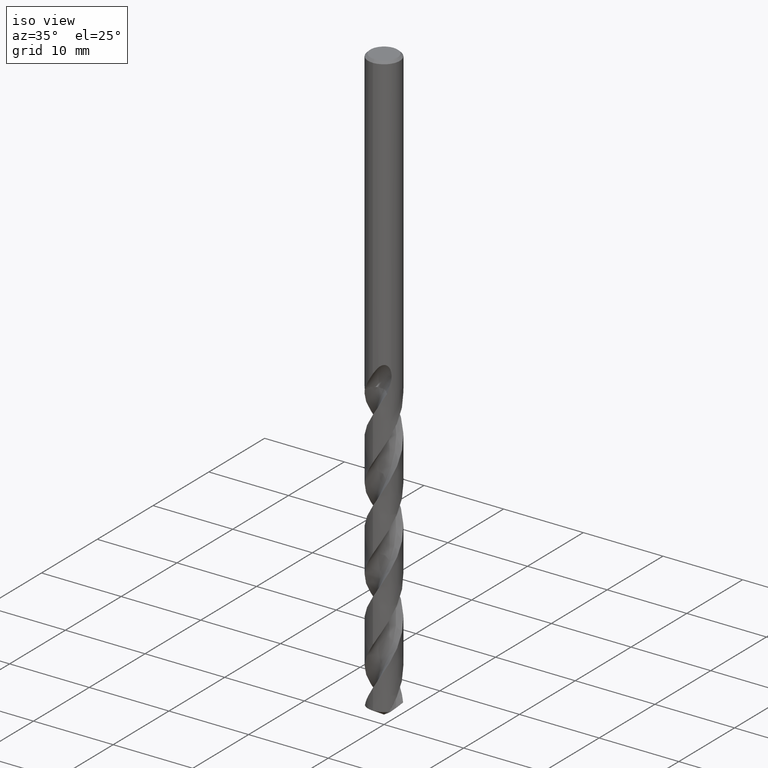
[diagram: clean part render]
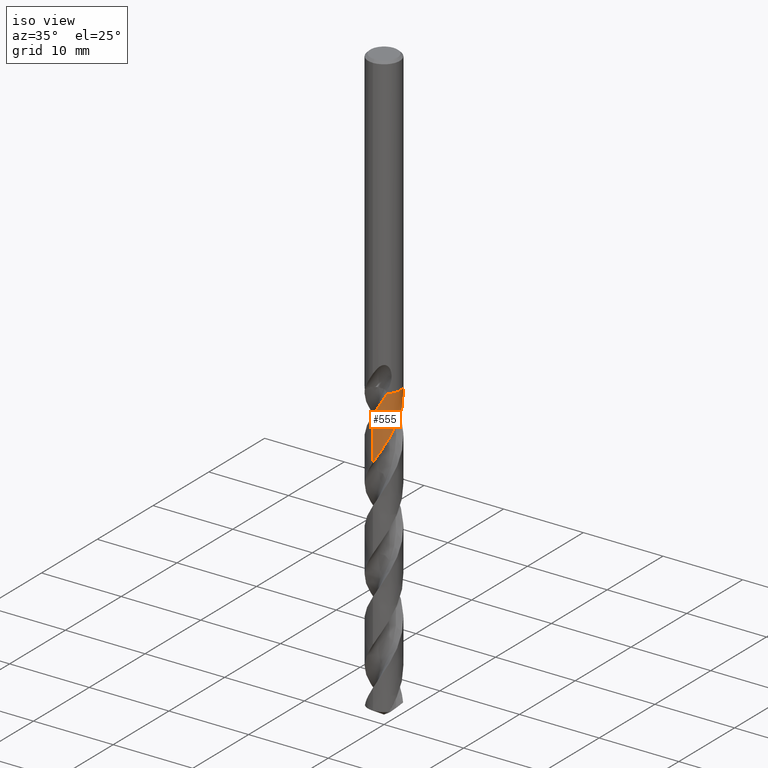
[diagram: same view with one face highlighted and labeled with its STEP entity id]
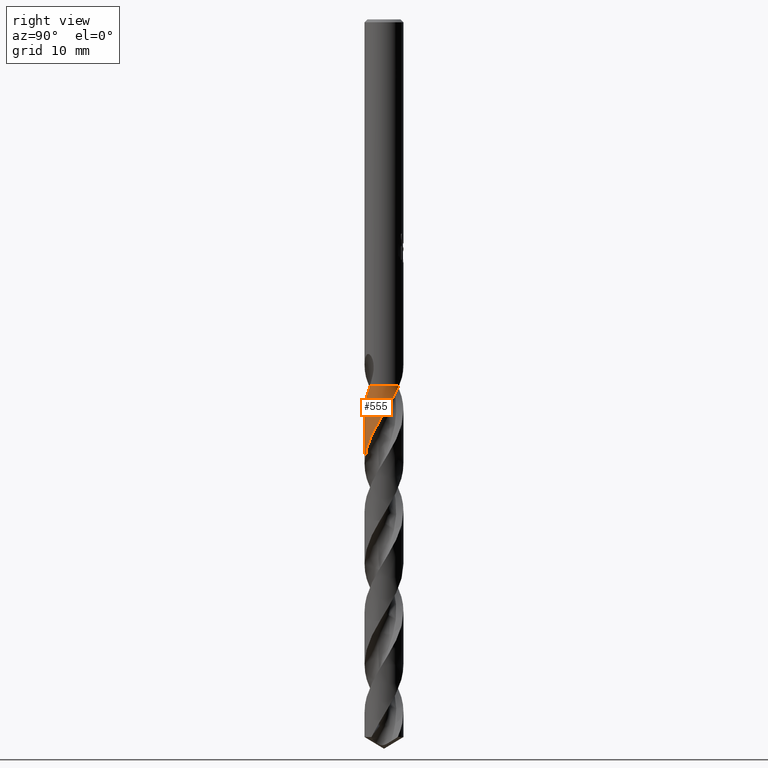
[diagram: same view with one face highlighted and labeled with its STEP entity id]
A machine part, iso view. The second image highlights one B-rep face of the part: STEP entity #555.
A second angle (right view) of the same face is appended — the face is thin or edge-on in the first view.
In plain terms, the highlighted conical surface has half-angle 0 deg.
Its self-contained STEP definition (entity closure, byte-faithful):
#303=EDGE_CURVE('',#523,#517,#803,.T.);
#363=VERTEX_POINT('',#871);
#411=EDGE_CURVE('',#523,#513,#926,.T.);
#429=EDGE_CURVE('',#363,#535,#946,.T.);
#513=VERTEX_POINT('',#1036);
#517=VERTEX_POINT('',#1040);
#523=VERTEX_POINT('',#1046);
#535=VERTEX_POINT('',#1061);
#549=EDGE_CURVE('',#661,#363,#1077,.T.);
#555=ADVANCED_FACE('',(#1084),#1085,.T.);
#609=EDGE_CURVE('',#535,#513,#1144,.T.);
#661=VERTEX_POINT('',#1200);
#679=EDGE_CURVE('',#517,#661,#1218,.T.);
#803=B_SPLINE_CURVE_WITH_KNOTS('',3,(#1654,#1655,#1656,#1657,#1658,#1659,#1660,#1661,#1662,#1663,#1664,#1665,#1666,#1667,#1668,#1669,#1670,#1671,#1672,#1673,#1674,#1675,#1676,#1677,#1678,#1679,#1680,#1681,#1682,#1683,#1684,#1685,#1686,#1687,#1688,#1689,#1690,#1691,#1692,#1693,#1694,#1695,#1696,#1697,#1698,#1699,#1700,#1701,#1702,#1703,#1704,#1705,#1706,#1707,#1708,#1709,#1710,#1711,#1712,#1713,#1714,#1715,#1716,#1717,#1718,#1719,#1720,#1721,#1722,#1723,#1724,#1725,#1726,#1727,#1728,#1729,#1730,#1731,#1732,#1733,#1734,#1735,#1736,#1737,#1738,#1739,#1740,#1741,#1742,#1743,#1744,#1745,#1746,#1747,#1748,#1749,#1750,#1751,#1752,#1753,#1754,#1755,#1756,#1757,#1758,#1759,#1760,#1761,#1762,#1763,#1764,#1765,#1766,#1767,#1768,#1769,#1770,#1771,#1772,#1773,#1774,#1775,#1776,#1777,#1778,#1779,#1780,#1781,#1782,#1783,#1784,#1785,#1786,#1787,#1788,#1789,#1790,#1791,#1792,#1793,#1794,#1795,#1796,#1797,#1798,#1799,#1800,#1801,#1802,#1803,#1804,#1805,#1806,#1807),.UNSPECIFIED.,.F.,.F.,(4,2,2,2,2,2,2,2,2,2,2,2,2,2,2,2,2,2,2,2,2,2,2,2,2,2,2,2,2,2,2,2,2,2,2,2,2,2,2,2,2,2,2,2,2,2,2,2,2,2,2,2,2,2,2,2,2,2,2,2,2,2,2,2,2,2,2,2,2,2,2,2,2,2,2,2,4),(0.0,1.24032553367658,1.48286990301691,2.52081264087684,3.03416551821197,3.70671508389971,4.37725410743775,5.04963320050356,5.72220383189465,6.4003737901738,7.10927777773157,7.8181323907391,8.52318346004922,9.23372237013536,9.86816172978323,10.5423467489422,10.8815407967902,10.9202487577009,11.6191148237687,11.9582378039923,12.5892865601359,13.2587080366521,13.5954922823803,13.6339757824647,14.3272693134265,14.6640012649049,15.2917140321308,15.956398699509,16.2907919260985,16.3741696488591,17.0057839634591,17.3403080393974,17.9800262047859,18.6405448371667,18.8057959462238,19.306067297673,19.965554956693,20.6227756760714,21.2818084755752,21.9409480895873,22.5996297300975,23.260602684544,23.8918656910809,24.5907816662158,25.2077878209879,25.9085561176649,26.6442976286168,27.3048885068284,27.9655777373696,28.6280008085611,29.2679378144779,29.9334140876591,30.514889471551,30.8504927100535,31.3663553845967,32.0286925286017,32.6890297992378,33.3509291716013,34.013185464377,34.674810658622,35.3388098755929,35.9656113593743,36.633379136894,37.7345972654092,37.7859749709192,38.4782272810486,40.0207165348157,40.6471288940166,40.9388104690562,41.1025023262755,41.195596909164,41.2333776767071,41.2695378062387,41.3189884562492,41.4343713854189,41.5982485505299,41.788288954141),.UNSPECIFIED.);
#871=CARTESIAN_POINT('',(1.3914031540101,-1.43652263226541,-37.7));
#926=LINE('',#3664,#3665);
#946=B_SPLINE_CURVE_WITH_KNOTS('',3,(#4639,#4640,#4641,#4642),.UNSPECIFIED.,.F.,.F.,(4,4),(0.0,0.00532634215155757),.UNSPECIFIED.);
#1036=CARTESIAN_POINT('',(-3.76272970418629E-015,-1.99990702961773,-40.2375710057314));
#1040=CARTESIAN_POINT('',(1.27440158741468,1.54126592754024,-37.705));
#1046=CARTESIAN_POINT('',(2.46037451759699E-013,-1.99992210752273,-45.6804351803826));
#1061=CARTESIAN_POINT('',(1.39008397358236,-1.43779922513228,-37.705));
#1077=CIRCLE('',#5975,1.9999);
#1084=FACE_OUTER_BOUND('',#6009,.T.);
#1085=CONICAL_SURFACE('',#6010,1.99995,2.77021518558259E-006);
#1144=B_SPLINE_CURVE_WITH_KNOTS('',3,(#6460,#6461,#6462,#6463,#6464,#6465,#6466,#6467,#6468,#6469,#6470,#6471,#6472,#6473,#6474,#6475,#6476,#6477,#6478,#6479,#6480,#6481,#6482,#6483,#6484,#6485,#6486,#6487,#6488,#6489,#6490,#6491,#6492,#6493,#6494,#6495,#6496,#6497,#6498,#6499,#6500,#6501,#6502,#6503,#6504,#6505,#6506,#6507,#6508,#6509,#6510,#6511,#6512,#6513,#6514,#6515,#6516,#6517,#6518,#6519,#6520,#6521,#6522,#6523,#6524,#6525,#6526,#6527,#6528,#6529,#6530,#6531,#6532,#6533,#6534,#6535,#6536,#6537,#6538,#6539,#6540,#6541,#6542,#6543,#6544,#6545,#6546,#6547,#6548,#6549,#6550,#6551,#6552,#6553,#6554,#6555,#6556,#6557,#6558,#6559,#6560,#6561,#6562,#6563,#6564,#6565,#6566,#6567,#6568,#6569,#6570,#6571,#6572,#6573,#6574,#6575,#6576,#6577,#6578,#6579,#6580,#6581,#6582,#6583,#6584,#6585,#6586,#6587,#6588,#6589,#6590,#6591,#6592,#6593,#6594,#6595,#6596,#6597,#6598,#6599,#6600,#6601,#6602,#6603,#6604,#6605,#6606,#6607,#6608,#6609,#6610,#6611,#6612,#6613,#6614,#6615,#6616,#6617,#6618,#6619,#6620,#6621,#6622,#6623,#6624,#6625,#6626,#6627,#6628,#6629,#6630,#6631,#6632,#6633,#6634,#6635,#6636,#6637,#6638,#6639,#6640,#6641),.UNSPECIFIED.,.F.,.F.,(4,2,2,2,2,2,2,2,2,2,2,2,2,2,2,2,2,2,2,2,2,2,2,2,2,2,2,2,2,2,2,2,2,2,2,2,2,2,2,2,2,2,2,2,2,2,2,2,2,2,2,2,2,2,2,2,2,2,2,2,2,2,2,2,2,2,2,2,2,2,2,2,2,2,2,2,2,2,2,2,2,2,2,2,2,2,2,2,2,2,4),(0.0,0.103242014952717,0.143162014123173,0.165246336569621,0.179587707751007,0.190170328115785,0.197981630062591,0.203754393433035,0.208026326100163,0.211176849575096,0.213497863286004,0.215211223497984,0.216477930308969,0.443871943252222,0.499196357866209,0.529789708739,0.555639728775984,0.586475384021084,0.64294904054601,0.716459816229802,1.01709561490843,1.18889624777996,1.33721914430403,1.48647925487588,2.17475794722885,2.50838508438569,2.97788342318188,3.69869431982922,4.15438525433489,4.78738339633805,5.13802788667931,5.47972340817034,6.07997742782962,6.43106360413721,6.79233197555612,7.94628727524654,8.08248365856264,9.16397508490607,9.48112720770868,10.103242533501,10.4343895620863,10.7854162159641,11.9554842663724,11.9886119956421,12.9498473469337,13.9068986778172,14.6031995455067,14.6699256937446,15.6665726820229,16.4850627584313,17.1757667926826,17.4705039393287,18.124078743558,18.4733057152474,18.7813091331889,19.4143265364156,19.7641888862437,20.0904935085466,20.7015453229712,21.0324695342341,21.3958003502327,22.5517948907513,22.6194212478342,23.601475810558,24.4670743800055,25.1215690732563,25.4212769544124,26.0656825745919,26.3958458071347,26.7212333550344,27.332742550354,27.6828289457632,28.0314073282876,29.1991322911171,29.2322034171917,30.191849307055,31.1472114073422,31.8423361268929,31.9088827792965,32.9054783203915,33.7170861157819,34.3693372364449,34.6825683904591,35.3050140239968,35.6352545509863,35.9824427866707,37.1558613127287,37.1886674167646,38.1513330405479,38.8764478364483,41.1040860441301),.UNSPECIFIED.);
#1200=CARTESIAN_POINT('',(1.2720272822931,1.54322603759204,-37.7));
#1218=B_SPLINE_CURVE_WITH_KNOTS('',3,(#7292,#7293,#7294,#7295),.UNSPECIFIED.,.F.,.F.,(4,4),(0.0,0.00587191555881923),.UNSPECIFIED.);
#1654=CARTESIAN_POINT('',(-1.53262371792478,1.28493756239532,-73.7982787619449));
#1655=CARTESIAN_POINT('',(-1.66988290302866,1.12121860058729,-73.4443152377205));
#1656=CARTESIAN_POINT('',(-1.78017755426643,0.93641936771401,-73.097612808172));
#1657=CARTESIAN_POINT('',(-1.87461281616959,0.698262375103469,-72.6755401035258));
#1658=CARTESIAN_POINT('',(-1.88882639474166,0.65885031969179,-72.6063935208323));
#1659=CARTESIAN_POINT('',(-1.95740806067853,0.448113983238073,-72.2415819853789));
#1660=CARTESIAN_POINT('',(-1.98971257301379,0.270662283067244,-71.9496929396074));
#1661=CARTESIAN_POINT('',(-2.00196227890094,0.00260361956815423,-71.5078805746169));
#1662=CARTESIAN_POINT('',(-2.00010904008816,-0.0863674349544658,-71.3610064273596));
#1663=CARTESIAN_POINT('',(-1.98211279688531,-0.291197956778016,-71.0230432618815));
#1664=CARTESIAN_POINT('',(-1.96176580929346,-0.406268890364327,-70.8324900580101));
#1665=CARTESIAN_POINT('',(-1.90130867156413,-0.631283876464247,-70.4498761632733));
#1666=CARTESIAN_POINT('',(-1.86143019532706,-0.740635693302151,-70.2580113307236));
#1667=CARTESIAN_POINT('',(-1.7629952437098,-0.951515288066501,-69.8754425077852));
#1668=CARTESIAN_POINT('',(-1.70456362423614,-1.05262268110823,-69.6849954016198));
#1669=CARTESIAN_POINT('',(-1.5706659038222,-1.24360917522762,-69.3020253800664));
#1670=CARTESIAN_POINT('',(-1.495577895581,-1.33295193219058,-69.1096743092869));
#1671=CARTESIAN_POINT('',(-1.33005093671287,-1.4982326792611,-68.7250520864913));
#1672=CARTESIAN_POINT('',(-1.23976210564702,-1.57377004067631,-68.5330770279535));
#1673=CARTESIAN_POINT('',(-1.04247427735746,-1.71122362109708,-68.1383350025074));
#1674=CARTESIAN_POINT('',(-0.935519627198441,-1.77194828469599,-67.9356965596016));
#1675=CARTESIAN_POINT('',(-0.71185041912336,-1.8730349991737,-67.532200545499));
#1676=CARTESIAN_POINT('',(-0.595588891374168,-1.91318488127829,-67.3317406914691));
#1677=CARTESIAN_POINT('',(-0.35774108972852,-1.97151161249924,-66.9294929341362));
#1678=CARTESIAN_POINT('',(-0.236843181585558,-1.98965606770417,-66.7280196875413));
#1679=CARTESIAN_POINT('',(0.00786822188284364,-2.00374462205703,-66.3252886702171));
#1680=CARTESIAN_POINT('',(0.131060641867172,-1.99946623553828,-66.1244186765992));
#1681=CARTESIAN_POINT('',(0.362001567646378,-1.97000659677621,-65.7417997353669));
#1682=CARTESIAN_POINT('',(0.469512641953792,-1.94718484423125,-65.5605355586954));
#1683=CARTESIAN_POINT('',(0.686494457352241,-1.8820868296905,-65.1882499614103));
#1684=CARTESIAN_POINT('',(0.795141264869552,-1.83882637421726,-64.9975542606636));
#1685=CARTESIAN_POINT('',(0.951877256578371,-1.75990880160137,-64.7093469690057));
#1686=CARTESIAN_POINT('',(1.00304114229599,-1.73125048289718,-64.6129552795981));
#1687=CARTESIAN_POINT('',(1.05845047599225,-1.69694554261188,-64.5053129438504));
#1688=CARTESIAN_POINT('',(1.06413033656497,-1.69338973608724,-64.4942479999532));
#1689=CARTESIAN_POINT('',(1.17244962393077,-1.62481156151548,-64.2826265525552));
#1690=CARTESIAN_POINT('',(1.26916965935683,-1.55048131867249,-64.0833760160938));
#1691=CARTESIAN_POINT('',(1.40216744952306,-1.42734787334935,-63.786156249145));
#1692=CARTESIAN_POINT('',(1.44377692091272,-1.38524058277191,-63.6891704622704));
#1693=CARTESIAN_POINT('',(1.55721567694982,-1.25978858150878,-63.4112074222793));
#1694=CARTESIAN_POINT('',(1.62408438506294,-1.17232125638436,-63.2296257509412));
#1695=CARTESIAN_POINT('',(1.7464865242893,-0.981470704049229,-62.857021079714));
#1696=CARTESIAN_POINT('',(1.80077973333512,-0.877894461545428,-62.6663223537711));
#1697=CARTESIAN_POINT('',(1.86835349781847,-0.715945830491936,-62.3781133208048));
#1698=CARTESIAN_POINT('',(1.8885250824403,-0.660883251029444,-62.2817234915331));
#1699=CARTESIAN_POINT('',(1.90824499270511,-0.598762819785289,-62.1740686099017));
#1700=CARTESIAN_POINT('',(1.91024307516528,-0.59235786993977,-62.162989667397));
#1701=CARTESIAN_POINT('',(1.94777011917785,-0.469881453690312,-61.9515387529477));
#1702=CARTESIAN_POINT('',(1.97276609700006,-0.350605290125268,-61.7524698993851));
#1703=CARTESIAN_POINT('',(1.99354989560672,-0.170670516689586,-61.4554339958378));
#1704=CARTESIAN_POINT('',(1.9977232763801,-0.111620473466883,-61.358447649903));
#1705=CARTESIAN_POINT('',(2.00216918789273,0.0576507512365968,-61.0801620512957));
#1706=CARTESIAN_POINT('',(1.99596019218351,0.167771404175438,-60.8982559807201));
#1707=CARTESIAN_POINT('',(1.96453863370029,0.392506346567296,-60.5253334291527));
#1708=CARTESIAN_POINT('',(1.93829175736386,0.506463128098232,-60.3346387536772));
#1709=CARTESIAN_POINT('',(1.8841117541943,0.67336465250481,-60.0464388242068));
#1710=CARTESIAN_POINT('',(1.86356817369174,0.728274550538368,-59.950072374824));
#1711=CARTESIAN_POINT('',(1.83498024645944,0.795553616264746,-59.8293268092294));
#1712=CARTESIAN_POINT('',(1.82910644742081,0.808968861376556,-59.8051560092734));
#1713=CARTESIAN_POINT('',(1.77727462886873,0.923870560796245,-59.5972427009877));
#1714=CARTESIAN_POINT('',(1.72300448044276,1.02156583827215,-59.4145626938415));
#1715=CARTESIAN_POINT('',(1.62770784002661,1.1635769232599,-59.1341079700727));
#1716=CARTESIAN_POINT('',(1.59256817713431,1.21122219268571,-59.0371218621479));
#1717=CARTESIAN_POINT('',(1.48431923733584,1.34514501172507,-58.754161390188));
#1718=CARTESIAN_POINT('',(1.4059876814206,1.42681954599787,-58.5675544239667));
#1719=CARTESIAN_POINT('',(1.23345235198588,1.57862324761034,-58.1899070021456));
#1720=CARTESIAN_POINT('',(1.13921636845709,1.64792187033076,-57.9991628217736));
#1721=CARTESIAN_POINT('',(1.01449710296805,1.72379563101954,-57.7593849746665));
#1722=CARTESIAN_POINT('',(0.989230053513144,1.73841773615108,-57.7114045067994));
#1723=CARTESIAN_POINT('',(0.88630832255769,1.79501324059676,-57.5180358516734));
#1724=CARTESIAN_POINT('',(0.806127497680109,1.83243227626335,-57.3720313022307));
#1725=CARTESIAN_POINT('',(0.614869591186591,1.90666186533303,-57.0348492732101));
#1726=CARTESIAN_POINT('',(0.502612112142768,1.9392819637579,-56.8442146983));
#1727=CARTESIAN_POINT('',(0.274022156347327,1.98450185285999,-56.4615307721579));
#1728=CARTESIAN_POINT('',(0.158318041513931,1.99705833170559,-56.2696712714644));
#1729=CARTESIAN_POINT('',(-0.0743366483283197,2.00196177721853,-55.8871171748329));
#1730=CARTESIAN_POINT('',(-0.190850947072009,1.99423442925676,-55.6966794559267));
#1731=CARTESIAN_POINT('',(-0.421322789987743,1.95854086344719,-55.3137458350253));
#1732=CARTESIAN_POINT('',(-0.534631740415872,1.93067938963049,-55.1214227075347));
#1733=CARTESIAN_POINT('',(-0.755018464011864,1.85560718970463,-54.7385879621882));
#1734=CARTESIAN_POINT('',(-0.861738141156644,1.80852556344546,-54.5483401426844));
#1735=CARTESIAN_POINT('',(-1.0662389414274,1.69604899421464,-54.1651977432134));
#1736=CARTESIAN_POINT('',(-1.16338955698532,1.63092602337572,-53.9724690426943));
#1737=CARTESIAN_POINT('',(-1.34106970864471,1.48785967673115,-53.5972854908633));
#1738=CARTESIAN_POINT('',(-1.42193288375152,1.41079282422494,-53.414983140333));
#1739=CARTESIAN_POINT('',(-1.5780070115914,1.23488132129178,-53.0290686932739));
#1740=CARTESIAN_POINT('',(-1.65116003264857,1.13518135682253,-52.825464120983));
#1741=CARTESIAN_POINT('',(-1.77064317117963,0.936178956669493,-52.4436626505247));
#1742=CARTESIAN_POINT('',(-1.81900010199805,0.838382457932723,-52.265558219128));
#1743=CARTESIAN_POINT('',(-1.90480664316705,0.621932407639089,-51.8835275227407));
#1744=CARTESIAN_POINT('',(-1.93958611023215,0.50299813893994,-51.6795842008056));
#1745=CARTESIAN_POINT('',(-1.98790527980888,0.254537183472631,-51.2631194883426));
#1746=CARTESIAN_POINT('',(-2.00023614044885,0.125110120125665,-51.0513377655327));
#1747=CARTESIAN_POINT('',(-1.99965681288727,-0.121239638589642,-50.6468240063958));
#1748=CARTESIAN_POINT('',(-1.98920521820812,-0.237382966937104,-50.4546095261018));
#1749=CARTESIAN_POINT('',(-1.94823537682987,-0.466547727887327,-50.0718350250351));
#1750=CARTESIAN_POINT('',(-1.91777593191076,-0.579178353501137,-49.8815366509014));
#1751=CARTESIAN_POINT('',(-1.83743365297725,-0.798258586093952,-49.4984439211633));
#1752=CARTESIAN_POINT('',(-1.78773942221572,-0.904055792872252,-49.3058158007163));
#1753=CARTESIAN_POINT('',(-1.67253254227673,-1.10229404571645,-48.9287295018681));
#1754=CARTESIAN_POINT('',(-1.60775976041749,-1.19480510036355,-48.7444489625398));
#1755=CARTESIAN_POINT('',(-1.46029913988396,-1.37149886332,-48.366745234998));
#1756=CARTESIAN_POINT('',(-1.37745581153361,-1.45465615726233,-48.1734207001611));
#1757=CARTESIAN_POINT('',(-1.20971117504869,-1.59585878280226,-47.8126444089888));
#1758=CARTESIAN_POINT('',(-1.12647630649067,-1.65567539813227,-47.6451748254322));
#1759=CARTESIAN_POINT('',(-0.988384363968059,-1.73962673712692,-47.3800946684194));
#1760=CARTESIAN_POINT('',(-0.936574960731401,-1.76805363786914,-47.2831942359247));
#1761=CARTESIAN_POINT('',(-0.802305596613202,-1.83418424183212,-47.036851193348));
#1762=CARTESIAN_POINT('',(-0.718279184548838,-1.86869746755517,-46.8869491200006));
#1763=CARTESIAN_POINT('',(-0.52142273202017,-1.9342756100976,-46.5459178778786));
#1764=CARTESIAN_POINT('',(-0.407726963275053,-1.96139566407105,-46.355304920412));
#1765=CARTESIAN_POINT('',(-0.177186304618905,-1.99545305276533,-45.9725898816065));
#1766=CARTESIAN_POINT('',(-0.0609733414137376,-2.0023685596074,-45.7806753950565));
#1767=CARTESIAN_POINT('',(0.171661160097134,-1.99594333309148,-45.3980845353686));
#1768=CARTESIAN_POINT('',(0.287649117635595,-1.98255753983809,-45.2076659502053));
#1769=CARTESIAN_POINT('',(0.516134417628137,-1.93568904968514,-44.8247032028507));
#1770=CARTESIAN_POINT('',(0.627983982716596,-1.90233543953389,-44.6323326758171));
#1771=CARTESIAN_POINT('',(0.844475022128079,-1.81661109103565,-44.2494452229939));
#1772=CARTESIAN_POINT('',(0.948772522238124,-1.76438973439971,-44.0591942825847));
#1773=CARTESIAN_POINT('',(1.14755934457002,-1.64208443637845,-43.6760280705636));
#1774=CARTESIAN_POINT('',(1.24143080721525,-1.57230097466319,-43.4832720041797));
#1775=CARTESIAN_POINT('',(1.41097805867138,-1.42159582322371,-43.1101730273673));
#1776=CARTESIAN_POINT('',(1.48718168540786,-1.34168592350624,-42.9299507471879));
#1777=CARTESIAN_POINT('',(1.63026841121357,-1.16434289602977,-42.5560521849537));
#1778=CARTESIAN_POINT('',(1.69575743043484,-1.06667060780719,-42.362462441773));
#1779=CARTESIAN_POINT('',(1.8453700664036,-0.794725484491324,-41.8515701531617));
#1780=CARTESIAN_POINT('',(1.91337952920689,-0.613003185064811,-41.5381764187789));
#1781=CARTESIAN_POINT('',(1.95621511932899,-0.41586310725348,-41.2051681533261));
#1782=CARTESIAN_POINT('',(1.9580629959505,-0.407073801080759,-41.1903331936901));
#1783=CARTESIAN_POINT('',(1.98401701981457,-0.279346328385922,-40.9752211276293));
#1784=CARTESIAN_POINT('',(1.99736138168565,-0.158239261368164,-40.7763300693778));
#1785=CARTESIAN_POINT('',(2.00451487709897,0.235194943909462,-40.1312067315355));
#1786=CARTESIAN_POINT('',(1.95410061767399,0.50540297378357,-39.6848285766994));
#1787=CARTESIAN_POINT('',(1.8088697509928,0.860152389223623,-39.0591920328594));
#1788=CARTESIAN_POINT('',(1.75946381310348,0.956638556166705,-38.8853843587732));
#1789=CARTESIAN_POINT('',(1.67805049006828,1.08912697475643,-38.6253118050715));
#1790=CARTESIAN_POINT('',(1.65112221139424,1.12945484109858,-38.5425157905671));
#1791=CARTESIAN_POINT('',(1.60774036509074,1.18974437591616,-38.4118055225168));
#1792=CARTESIAN_POINT('',(1.59192903081597,1.2108033204371,-38.3646894112861));
#1793=CARTESIAN_POINT('',(1.56682986314169,1.24292765889574,-38.2903471927372));
#1794=CARTESIAN_POINT('',(1.55962632914924,1.25198562289494,-38.2687816208233));
#1795=CARTESIAN_POINT('',(1.54432423834948,1.27071524606637,-38.2264184795733));
#1796=CARTESIAN_POINT('',(1.53982358369299,1.27616624375821,-38.2142421541025));
#1797=CARTESIAN_POINT('',(1.53084522684893,1.28692085116517,-38.190508945088));
#1798=CARTESIAN_POINT('',(1.52637641357318,1.29221884206538,-38.1789521088422));
#1799=CARTESIAN_POINT('',(1.51560459246632,1.30485236716283,-38.1517021446857));
#1800=CARTESIAN_POINT('',(1.50923441842683,1.31221724621614,-38.1360582684901));
#1801=CARTESIAN_POINT('',(1.48748382478172,1.33698486501797,-38.0842126297658));
#1802=CARTESIAN_POINT('',(1.47144810602311,1.35464104761593,-38.0484910725662));
#1803=CARTESIAN_POINT('',(1.43048833704534,1.39804598143647,-37.9632230702732));
#1804=CARTESIAN_POINT('',(1.40477950862335,1.42395258190716,-37.9144229715555));
#1805=CARTESIAN_POINT('',(1.34527219624892,1.48046813185615,-37.8111773236327));
#1806=CARTESIAN_POINT('',(1.31105923424166,1.51095560156955,-37.7574599059652));
#1807=CARTESIAN_POINT('',(1.27440158741468,1.54126592754024,-37.705));
#3664=CARTESIAN_POINT('',(2.46107026183834E-016,-1.99995,-55.7491393809724));
#3665=VECTOR('',#8141,1.0);
#4639=CARTESIAN_POINT('',(1.3914031540101,-1.43652263226541,-37.7));
#4640=CARTESIAN_POINT('',(1.39096382345312,-1.43694817039691,-37.7016667691421));
#4641=CARTESIAN_POINT('',(1.3905240968048,-1.43737370155414,-37.7033334362763));
#4642=CARTESIAN_POINT('',(1.39008397358236,-1.43779922513228,-37.705));
#5975=AXIS2_PLACEMENT_3D('',#8296,#8297,#8298);
#6009=EDGE_LOOP('',(#8308,#8309,#8310,#8311,#8312,#8313));
#6010=AXIS2_PLACEMENT_3D('',#8314,#8315,#8316);
#6460=CARTESIAN_POINT('',(1.39008397358236,-1.43779922513228,-37.705));
#6461=CARTESIAN_POINT('',(1.37786387304143,-1.44961390092323,-37.7349233406855));
#6462=CARTESIAN_POINT('',(1.36544726101343,-1.46131775670189,-37.7648875674558));
#6463=CARTESIAN_POINT('',(1.34790380970774,-1.47743041319746,-37.8063976775579));
#6464=CARTESIAN_POINT('',(1.34298074550868,-1.48190707638936,-37.8179595512112));
#6465=CARTESIAN_POINT('',(1.33527584453718,-1.48884303031934,-37.835910530226));
#6466=CARTESIAN_POINT('',(1.33252121537796,-1.49130899298506,-37.8423001431057));
#6467=CARTESIAN_POINT('',(1.3279587484769,-1.49537053925125,-37.8528354264572));
#6468=CARTESIAN_POINT('',(1.32615789314022,-1.49696786844326,-37.8569816550718));
#6469=CARTESIAN_POINT('',(1.32301970865334,-1.4997412583039,-37.8641854426557));
#6470=CARTESIAN_POINT('',(1.32168472205139,-1.50091789596464,-37.8672432344455));
#6471=CARTESIAN_POINT('',(1.31935972432941,-1.50296159894508,-37.872556879257));
#6472=CARTESIAN_POINT('',(1.31837097537306,-1.5038289963821,-37.874812924169));
#6473=CARTESIAN_POINT('',(1.31664899002395,-1.50533663129249,-37.8787355613984));
#6474=CARTESIAN_POINT('',(1.31591643344166,-1.50597705717489,-37.8804022847349));
#6475=CARTESIAN_POINT('',(1.31464039347926,-1.50709097131424,-37.8833020169032));
#6476=CARTESIAN_POINT('',(1.31409727761907,-1.5075645655386,-37.8845351079524));
#6477=CARTESIAN_POINT('',(1.31315286216759,-1.50838719221455,-37.8866773748265));
#6478=CARTESIAN_POINT('',(1.31275176425542,-1.50873628472428,-37.8875866008112));
#6479=CARTESIAN_POINT('',(1.3120547640544,-1.50934242492065,-37.8891655372906));
#6480=CARTESIAN_POINT('',(1.3117589713566,-1.50959950587481,-37.889835276749));
#6481=CARTESIAN_POINT('',(1.31124460304084,-1.51004629102899,-37.8909993464913));
#6482=CARTESIAN_POINT('',(1.31102608631687,-1.51023601353297,-37.8914936933869));
#6483=CARTESIAN_POINT('',(1.31064589608968,-1.5105659608849,-37.8923534791378));
#6484=CARTESIAN_POINT('',(1.31048425444945,-1.51070619579981,-37.8927189273831));
#6485=CARTESIAN_POINT('',(1.28129847119991,-1.53601860058955,-37.9586860026859));
#6486=CARTESIAN_POINT('',(1.25167303414436,-1.56028381319221,-38.0224431825554));
#6487=CARTESIAN_POINT('',(1.21267629813578,-1.59031866221227,-38.1027354495152));
#6488=CARTESIAN_POINT('',(1.20498416928656,-1.59615528856036,-38.1184117578468));
#6489=CARTESIAN_POINT('',(1.19292946554293,-1.60516445319522,-38.142752674755));
#6490=CARTESIAN_POINT('',(1.1886188990613,-1.60835910120316,-38.151412495637));
#6491=CARTESIAN_POINT('',(1.1806303194515,-1.61422980149747,-38.1673858125768));
#6492=CARTESIAN_POINT('',(1.17695932650249,-1.61690837942242,-38.1746969346226));
#6493=CARTESIAN_POINT('',(1.16888092800683,-1.62276069387482,-38.1907265650866));
#6494=CARTESIAN_POINT('',(1.16447000259866,-1.62592887515482,-38.1994406655654));
#6495=CARTESIAN_POINT('',(1.15193225465519,-1.63485687875439,-38.2241122048803));
#6496=CARTESIAN_POINT('',(1.14377388160877,-1.64057511716888,-38.240050680143));
#6497=CARTESIAN_POINT('',(1.124883089014,-1.65360602334604,-38.2767503741521));
#6498=CARTESIAN_POINT('',(1.1140101645739,-1.66095291816124,-38.2977162292994));
#6499=CARTESIAN_POINT('',(1.05758689680201,-1.69825548402141,-38.4063795585645));
#6500=CARTESIAN_POINT('',(1.01135940529068,-1.72615981094616,-38.494461257439));
#6501=CARTESIAN_POINT('',(0.937651301953933,-1.76673612874487,-38.6325833052391));
#6502=CARTESIAN_POINT('',(0.910548755889102,-1.78085451334152,-38.6829007721702));
#6503=CARTESIAN_POINT('',(0.859540047941869,-1.80596144120811,-38.7766066497506));
#6504=CARTESIAN_POINT('',(0.835676122450983,-1.81712738461465,-38.8200526400443));
#6505=CARTESIAN_POINT('',(0.787366671292288,-1.83857825588234,-38.9071631414763));
#6506=CARTESIAN_POINT('',(0.762913051352005,-1.84885956150845,-38.9508576801187));
#6507=CARTESIAN_POINT('',(0.624531804478263,-1.90382487312776,-39.1960965378374));
#6508=CARTESIAN_POINT('',(0.506800011457292,-1.93850608101639,-39.3969235943402));
#6509=CARTESIAN_POINT('',(0.328189434750769,-1.97368843468534,-39.6958828205283));
#6510=CARTESIAN_POINT('',(0.269404760654191,-1.98256751545482,-39.7934153264086));
#6511=CARTESIAN_POINT('',(0.127180392545985,-1.99760882048565,-40.0284005937068));
#6512=CARTESIAN_POINT('',(0.0436280534757016,-2.00117317540215,-40.1657284148118));
#6513=CARTESIAN_POINT('',(-0.167993922131697,-1.99695729887707,-40.5141558167758));
#6514=CARTESIAN_POINT('',(-0.295696276776411,-1.98208824320795,-40.7247245150474));
#6515=CARTESIAN_POINT('',(-0.500507642548412,-1.93796660852985,-41.0689370294438));
#6516=CARTESIAN_POINT('',(-0.578701569921236,-1.91606979464316,-41.2019739583632));
#6517=CARTESIAN_POINT('',(-0.761800585155813,-1.85256556680259,-41.5205624544108));
#6518=CARTESIAN_POINT('',(-0.864958763858327,-1.80670701581165,-41.7056687792942));
#6519=CARTESIAN_POINT('',(-1.01840383518741,-1.72232345515074,-41.9935293823529));
#6520=CARTESIAN_POINT('',(-1.07167504306704,-1.68969262448148,-42.0960636422373));
#6521=CARTESIAN_POINT('',(-1.17368991387904,-1.62043397719474,-42.2986452830333));
#6522=CARTESIAN_POINT('',(-1.22243134882225,-1.5839861674161,-42.3985223682522));
#6523=CARTESIAN_POINT('',(-1.35197875803215,-1.47757302746799,-42.6742377520251));
#6524=CARTESIAN_POINT('',(-1.42898026494289,-1.40324352193779,-42.8498288182095));
#6525=CARTESIAN_POINT('',(-1.54103201048698,-1.27623951058631,-43.1282844291864));
#6526=CARTESIAN_POINT('',(-1.58017518124301,-1.22744400754446,-43.2309638840003));
#6527=CARTESIAN_POINT('',(-1.65484673976761,-1.12484982187756,-43.4394247630929));
#6528=CARTESIAN_POINT('',(-1.69016926839794,-1.07104118368905,-43.5450063516116));
#6529=CARTESIAN_POINT('',(-1.82716214871244,-0.838661392802355,-43.988554792302));
#6530=CARTESIAN_POINT('',(-1.90364728869491,-0.646577920719705,-44.3246496815499));
#6531=CARTESIAN_POINT('',(-1.95492599050632,-0.422528921981249,-44.7022578638532));
#6532=CARTESIAN_POINT('',(-1.95990682346583,-0.398787551681917,-44.7421118137018));
#6533=CARTESIAN_POINT('',(-2.00056344009476,-0.18579100925809,-45.0986064558074));
#6534=CARTESIAN_POINT('',(-2.00917060093627,0.00770024177994527,-45.414056747109));
#6535=CARTESIAN_POINT('',(-1.98431497305919,0.25569142938738,-45.823498563394));
#6536=CARTESIAN_POINT('',(-1.97630034000346,0.311637097627918,-45.9162602566387));
#6537=CARTESIAN_POINT('',(-1.94559463670072,0.476055283765676,-46.1913250434059));
#6538=CARTESIAN_POINT('',(-1.91623901174088,0.583099679330402,-46.3733747087533));
#6539=CARTESIAN_POINT('',(-1.85789361749266,0.742569975498839,-46.6525246326869));
#6540=CARTESIAN_POINT('',(-1.83517978593947,0.797056045261772,-46.7494256940456));
#6541=CARTESIAN_POINT('',(-1.78348032272468,0.907090990754286,-46.9491552098852));
#6542=CARTESIAN_POINT('',(-1.75424573013992,0.962410791715765,-47.0518064894414));
#6543=CARTESIAN_POINT('',(-1.6165770545773,1.19575030248112,-47.4973066277941));
#6544=CARTESIAN_POINT('',(-1.48321586502623,1.35767303787772,-47.8381517440104));
#6545=CARTESIAN_POINT('',(-1.32279105466159,1.49999164618099,-48.1904832533959));
#6546=CARTESIAN_POINT('',(-1.31835666138672,1.50389059906422,-48.2001841812809));
#6547=CARTESIAN_POINT('',(-1.18473909807011,1.62032907219414,-48.4914097837295));
#6548=CARTESIAN_POINT('',(-1.04160608451341,1.71585111603375,-48.7724598708261));
#6549=CARTESIAN_POINT('',(-0.735189798456847,1.86770859301357,-49.3343897830595));
#6550=CARTESIAN_POINT('',(-0.573290298276154,1.92357578645447,-49.6136975969326));
#6551=CARTESIAN_POINT('',(-0.284870783913293,1.98342517310971,-50.0981440698975));
#6552=CARTESIAN_POINT('',(-0.161280484948193,1.99728314695719,-50.3015591576284));
#6553=CARTESIAN_POINT('',(-0.0252633648918547,1.99981134349552,-50.5250609896347));
#6554=CARTESIAN_POINT('',(-0.0133692633380906,1.99992627011224,-50.5446030573995));
#6555=CARTESIAN_POINT('',(0.176192989974687,2.00006687577187,-50.8561456557864));
#6556=CARTESIAN_POINT('',(0.353150303939391,1.97651829778656,-51.1474818604949));
#6557=CARTESIAN_POINT('',(0.665516905074134,1.89159938414709,-51.6793257220622));
#6558=CARTESIAN_POINT('',(0.801701845443321,1.83801603994168,-51.918504611597));
#6559=CARTESIAN_POINT('',(1.03972515516455,1.71285781212852,-52.3608475389737));
#6560=CARTESIAN_POINT('',(1.14318749386553,1.64561904780784,-52.5627481864189));
#6561=CARTESIAN_POINT('',(1.28109238878819,1.53666307301564,-52.8514734035916));
#6562=CARTESIAN_POINT('',(1.32101940761068,1.50247649192005,-52.9377780524801));
#6563=CARTESIAN_POINT('',(1.44496784091985,1.38759024205621,-53.2157277616039));
#6564=CARTESIAN_POINT('',(1.52333605954696,1.30107702990046,-53.407095139131));
#6565=CARTESIAN_POINT('',(1.63135501760469,1.15859199528363,-53.7009829969624));
#6566=CARTESIAN_POINT('',(1.66664190360085,1.10723235499331,-53.8032435116127));
#6567=CARTESIAN_POINT('',(1.72844219120659,1.00761423242102,-53.9958268055068));
#6568=CARTESIAN_POINT('',(1.75545585041542,0.959776193410875,-54.0860088112585));
#6569=CARTESIAN_POINT('',(1.83185227995926,0.810452297163189,-54.361852020099));
#6570=CARTESIAN_POINT('',(1.87466218376939,0.705811133104764,-54.5472525677102));
#6571=CARTESIAN_POINT('',(1.92707632531258,0.538570933169307,-54.8353454111));
#6572=CARTESIAN_POINT('',(1.94294188778488,0.478187439666064,-54.9378089674208));
#6573=CARTESIAN_POINT('',(1.96810198353484,0.360216961182431,-55.1359667630788));
#6574=CARTESIAN_POINT('',(1.97774769844606,0.302807462023211,-55.2314994347554));
#6575=CARTESIAN_POINT('',(1.99822596278424,0.13695789825351,-55.5063010320279));
#6576=CARTESIAN_POINT('',(2.00272156310811,0.0279139642638779,-55.6853208982669));
#6577=CARTESIAN_POINT('',(1.99592219721987,-0.139926275083413,-55.9614698251466));
#6578=CARTESIAN_POINT('',(1.99092439582836,-0.198769485915891,-56.0584133398099));
#6579=CARTESIAN_POINT('',(1.97498829909687,-0.321603603259817,-56.2619025553287));
#6580=CARTESIAN_POINT('',(1.96353130763574,-0.385420325608257,-56.3682576096901));
#6581=CARTESIAN_POINT('',(1.90277179395152,-0.649429709779469,-56.8137197615019));
#6582=CARTESIAN_POINT('',(1.82573701390078,-0.842049975788506,-57.1509147917714));
#6583=CARTESIAN_POINT('',(1.71443585271483,-1.02989068852762,-57.5096182794097));
#6584=CARTESIAN_POINT('',(1.70819164381053,-1.04021469894303,-57.5294394686918));
#6585=CARTESIAN_POINT('',(1.60982197466378,-1.19958204169109,-57.8372113405159));
#6586=CARTESIAN_POINT('',(1.49856027063895,-1.33598817922419,-58.12457136869));
#6587=CARTESIAN_POINT('',(1.25846591134098,-1.5620380348921,-58.6663851269394));
#6588=CARTESIAN_POINT('',(1.13413141597212,-1.6545125813957,-58.9194445777278));
#6589=CARTESIAN_POINT('',(0.899393794505984,-1.79012717404742,-59.3653367341659));
#6590=CARTESIAN_POINT('',(0.793364190885328,-1.83958245718866,-59.5568503564054));
#6591=CARTESIAN_POINT('',(0.63329982917504,-1.89779834173459,-59.8366491993393));
#6592=CARTESIAN_POINT('',(0.582333704601515,-1.91405105436628,-59.9244734995152));
#6593=CARTESIAN_POINT('',(0.419975558997815,-1.95874475932774,-60.20141726562));
#6594=CARTESIAN_POINT('',(0.306705523208066,-1.97964799193534,-60.3902669187247));
#6595=CARTESIAN_POINT('',(0.133603324902864,-1.99636566458,-60.6761172852985));
#6596=CARTESIAN_POINT('',(0.0747266907186604,-1.99943630445734,-60.7728848073658));
#6597=CARTESIAN_POINT('',(-0.0422974769004497,-2.00036069143737,-60.9651338175338));
#6598=CARTESIAN_POINT('',(-0.100351617952022,-1.99828881101842,-61.0604646536023));
#6599=CARTESIAN_POINT('',(-0.266971725405188,-1.9850666365788,-61.3353217599731));
#6600=CARTESIAN_POINT('',(-0.374854458088028,-1.9675507903492,-61.5145985018194));
#6601=CARTESIAN_POINT('',(-0.541419976571116,-1.92630068127886,-61.7966938376236));
#6602=CARTESIAN_POINT('',(-0.601339000063358,-1.90844605393064,-61.8993127181269));
#6603=CARTESIAN_POINT('',(-0.719083094085583,-1.86726086111115,-62.1042349200183));
#6604=CARTESIAN_POINT('',(-0.776814314847176,-1.84399013655817,-62.2063531142659));
#6605=CARTESIAN_POINT('',(-1.02276559475098,-1.73125413941403,-62.6512426622647));
#6606=CARTESIAN_POINT('',(-1.19753740346442,-1.61532022706708,-62.992013784461));
#6607=CARTESIAN_POINT('',(-1.35560961081418,-1.47045626078028,-63.3442707364048));
#6608=CARTESIAN_POINT('',(-1.35994544847936,-1.46644724306251,-63.3539723969591));
#6609=CARTESIAN_POINT('',(-1.48956070095525,-1.34553270458205,-63.6452362012159));
#6610=CARTESIAN_POINT('',(-1.5993478504396,-1.21299263439157,-63.9263237573089));
#6611=CARTESIAN_POINT('',(-1.7820019157137,-0.923838955215543,-64.4882968933902));
#6612=CARTESIAN_POINT('',(-1.85426470366306,-0.76855592549603,-64.7676112476514));
#6613=CARTESIAN_POINT('',(-1.94353471606055,-0.487822784532255,-65.2520820818879));
#6614=CARTESIAN_POINT('',(-1.97006178363795,-0.366305148374715,-65.4555157783983));
#6615=CARTESIAN_POINT('',(-1.9865965697446,-0.231269066185116,-65.6790189440755));
#6616=CARTESIAN_POINT('',(-1.98793574142539,-0.219460644879667,-65.6985433028194));
#6617=CARTESIAN_POINT('',(-2.00764848726086,-0.0306233719088765,-66.010573962716));
#6618=CARTESIAN_POINT('',(-2.00241740174057,0.148134016333378,-66.3024066816042));
#6619=CARTESIAN_POINT('',(-1.95011037719586,0.46692367734958,-66.8331617843809));
#6620=CARTESIAN_POINT('',(-1.91114949375281,0.606979223177001,-67.0707603685406));
#6621=CARTESIAN_POINT('',(-1.81426216214905,0.849670552936171,-67.5005803337779));
#6622=CARTESIAN_POINT('',(-1.76171248359154,0.95387789590925,-67.6916436165189));
#6623=CARTESIAN_POINT('',(-1.67089145975433,1.10054050867894,-67.9750268504352));
#6624=CARTESIAN_POINT('',(-1.63945507067155,1.14684412393278,-68.0668868051788));
#6625=CARTESIAN_POINT('',(-1.53990424182821,1.28100978288755,-68.3416241977531));
#6626=CARTESIAN_POINT('',(-1.46634119446629,1.36460438296207,-68.5242485475883));
#6627=CARTESIAN_POINT('',(-1.34368396082356,1.48254418660032,-68.8039654011186));
#6628=CARTESIAN_POINT('',(-1.29936847530635,1.52153531264735,-68.9008557956958));
#6629=CARTESIAN_POINT('',(-1.20503706319092,1.59739870515994,-69.0997194146983));
#6630=CARTESIAN_POINT('',(-1.15492738145282,1.63399393794468,-69.2015182802885));
#6631=CARTESIAN_POINT('',(-0.928419387331156,1.78378961467741,-69.6480528292873));
#6632=CARTESIAN_POINT('',(-0.73645796077772,1.87124596372177,-69.9907424037679));
#6633=CARTESIAN_POINT('',(-0.528732938923113,1.92884358735834,-70.3448963561104));
#6634=CARTESIAN_POINT('',(-0.523077268765014,1.93038503374894,-70.3545275686333));
#6635=CARTESIAN_POINT('',(-0.351245582170046,1.97640695367391,-70.6468435620815));
#6636=CARTESIAN_POINT('',(-0.179974355208724,1.99929704177393,-70.9290126470504));
#6637=CARTESIAN_POINT('',(0.121718666482639,2.00048959991004,-71.4246943007145));
#6638=CARTESIAN_POINT('',(0.251013692518579,1.98840050368348,-71.6370203623645));
#6639=CARTESIAN_POINT('',(0.768811736353113,1.88869602459421,-72.5045602334502));
#6640=CARTESIAN_POINT('',(1.12844887592887,1.69857143481526,-73.1441863420449));
#6641=CARTESIAN_POINT('',(1.41070437765753,1.41771406103554,-73.7982787619449));
#7292=CARTESIAN_POINT('',(1.27440158741468,1.54126592754024,-37.705));
#7293=CARTESIAN_POINT('',(1.27361107036554,1.54191956357337,-37.7033330008028));
#7294=CARTESIAN_POINT('',(1.27281963499965,1.54257293493332,-37.7016663366368));
#7295=CARTESIAN_POINT('',(1.2720272822931,1.54322603759204,-37.7));
#8141=DIRECTION('',(-3.39242311771534E-022,2.77021518557905E-006,0.999999999996163));
#8296=CARTESIAN_POINT('',(0.0,0.0,-37.7));
#8297=DIRECTION('',(0.0,0.0,-1.0));
#8298=DIRECTION('',(0.0,1.0,0.0));
#8308=ORIENTED_EDGE('',*,*,#411,.F.);
#8309=ORIENTED_EDGE('',*,*,#303,.T.);
#8310=ORIENTED_EDGE('',*,*,#679,.T.);
#8311=ORIENTED_EDGE('',*,*,#549,.T.);
#8312=ORIENTED_EDGE('',*,*,#429,.T.);
#8313=ORIENTED_EDGE('',*,*,#609,.T.);
#8314=CARTESIAN_POINT('',(0.0,0.0,-55.7491393809724));
#8315=DIRECTION('',(0.0,-0.0,-1.0));
#8316=DIRECTION('',(0.0,1.0,0.0));